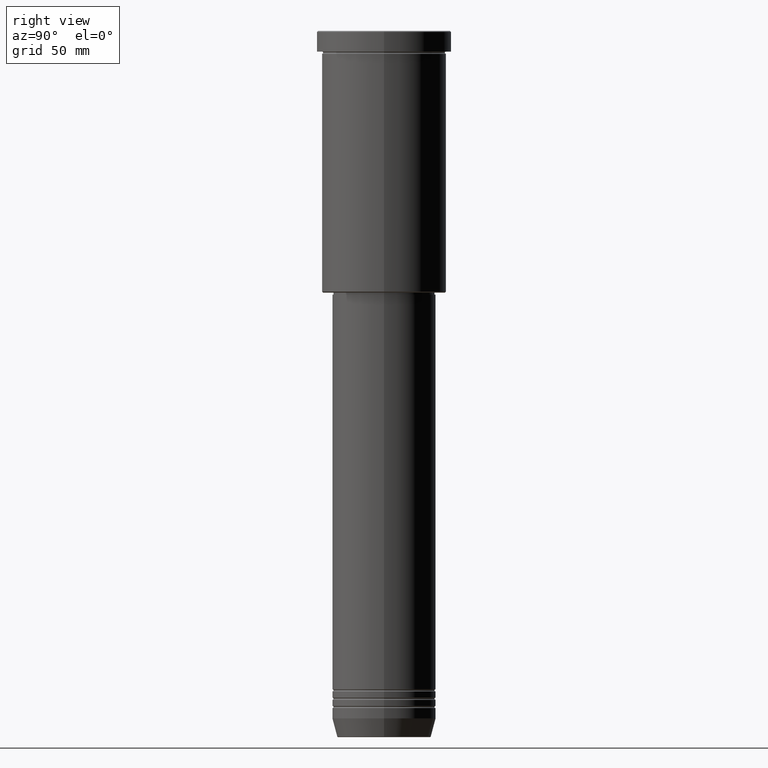
[diagram: clean part render]
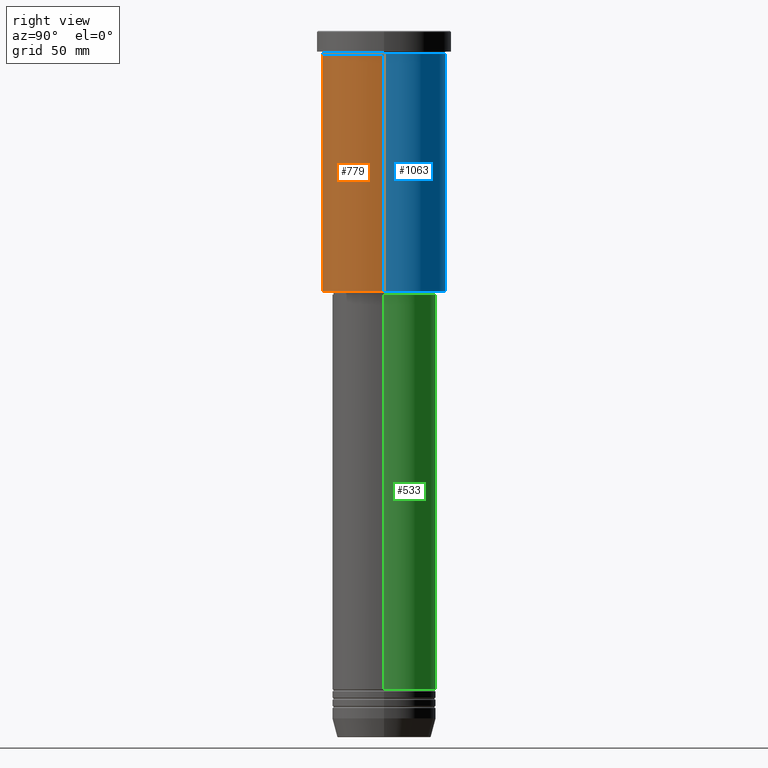
[diagram: same view with three faces highlighted in distinct colors, each labeled with its STEP entity id]
A machine part, right view with three faces highlighted in distinct colors.
Their STEP definitions:

[orange] entity #779 — the highlighted cylindrical surface (partial cylindrical patch) has radius 30 mm, axis along (-0, -0, 1).
#9 = EDGE_LOOP ( 'NONE', ( #902, #481, #1025, #1127 ) ) ;
#24 = DIRECTION ( 'NONE',  ( 1.000000000000000000, 0.000000000000000000, 0.000000000000000000 ) ) ;
#72 = CARTESIAN_POINT ( 'NONE',  ( 30.00000000000000000, 0.000000000000000000, 0.000000000000000000 ) ) ;
#108 = DIRECTION ( 'NONE',  ( -0.000000000000000000, -0.000000000000000000, 1.000000000000000000 ) ) ;
#169 = DIRECTION ( 'NONE',  ( -0.000000000000000000, -0.000000000000000000, 1.000000000000000000 ) ) ;
#175 = DIRECTION ( 'NONE',  ( 1.000000000000000000, 0.000000000000000000, 0.000000000000000000 ) ) ;
#197 = CYLINDRICAL_SURFACE ( 'NONE', #637, 30.00000000000000000 ) ;
#277 = CIRCLE ( 'NONE', #388, 30.00000000000000000 ) ;
#281 = FACE_OUTER_BOUND ( 'NONE', #9, .T. ) ;
#287 = CARTESIAN_POINT ( 'NONE',  ( -30.00000000000000000, 3.673940397442059178E-15, 0.000000000000000000 ) ) ;
#296 = VERTEX_POINT ( 'NONE', #1023 ) ;
#302 = DIRECTION ( 'NONE',  ( -1.000000000000000000, 0.000000000000000000, 0.000000000000000000 ) ) ;
#336 = CIRCLE ( 'NONE', #505, 30.00000000000000000 ) ;
#384 = EDGE_CURVE ( 'NONE', #402, #1061, #811, .T. ) ;
#388 = AXIS2_PLACEMENT_3D ( 'NONE', #1123, #827, #302 ) ;
#402 = VERTEX_POINT ( 'NONE', #915 ) ;
#425 = DIRECTION ( 'NONE',  ( -0.000000000000000000, -0.000000000000000000, 1.000000000000000000 ) ) ;
#429 = CARTESIAN_POINT ( 'NONE',  ( 0.000000000000000000, 0.000000000000000000, -10.99999999999999289 ) ) ;
#443 = CARTESIAN_POINT ( 'NONE',  ( 30.00000000000000000, 0.000000000000000000, -125.5000000000000284 ) ) ;
#481 = ORIENTED_EDGE ( 'NONE', *, *, #490, .T. ) ;
#490 = EDGE_CURVE ( 'NONE', #402, #1002, #277, .T. ) ;
#505 = AXIS2_PLACEMENT_3D ( 'NONE', #429, #169, #175 ) ;
#509 = VECTOR ( 'NONE', #425, 1000.000000000000000 ) ;
#517 = LINE ( 'NONE', #72, #509 ) ;
#637 = AXIS2_PLACEMENT_3D ( 'NONE', #917, #108, #24 ) ;
#749 = EDGE_CURVE ( 'NONE', #1002, #296, #517, .T. ) ;
#779 = ADVANCED_FACE ( 'NONE', ( #281 ), #197, .T. ) ;
#790 = CARTESIAN_POINT ( 'NONE',  ( -30.00000000000000000, 3.673940397442059178E-15, -10.99999999999999289 ) ) ;
#811 = LINE ( 'NONE', #287, #1142 ) ;
#827 = DIRECTION ( 'NONE',  ( -0.000000000000000000, -0.000000000000000000, 1.000000000000000000 ) ) ;
#902 = ORIENTED_EDGE ( 'NONE', *, *, #384, .F. ) ;
#915 = CARTESIAN_POINT ( 'NONE',  ( -30.00000000000000000, 3.673940397442059178E-15, -125.5000000000000284 ) ) ;
#917 = CARTESIAN_POINT ( 'NONE',  ( 0.000000000000000000, 0.000000000000000000, 0.000000000000000000 ) ) ;
#1000 = EDGE_CURVE ( 'NONE', #1061, #296, #336, .T. ) ;
#1002 = VERTEX_POINT ( 'NONE', #443 ) ;
#1023 = CARTESIAN_POINT ( 'NONE',  ( 30.00000000000000000, 0.000000000000000000, -10.99999999999999289 ) ) ;
#1025 = ORIENTED_EDGE ( 'NONE', *, *, #749, .T. ) ;
#1061 = VERTEX_POINT ( 'NONE', #790 ) ;
#1090 = DIRECTION ( 'NONE',  ( -0.000000000000000000, -0.000000000000000000, 1.000000000000000000 ) ) ;
#1123 = CARTESIAN_POINT ( 'NONE',  ( 0.000000000000000000, 0.000000000000000000, -125.5000000000000284 ) ) ;
#1127 = ORIENTED_EDGE ( 'NONE', *, *, #1000, .F. ) ;
#1142 = VECTOR ( 'NONE', #1090, 1000.000000000000000 ) ;

[blue] entity #1063 — the highlighted cylindrical surface (partial cylindrical patch) has radius 30 mm, axis along (-0, -0, 1).
#72 = CARTESIAN_POINT ( 'NONE',  ( 30.00000000000000000, 0.000000000000000000, 0.000000000000000000 ) ) ;
#105 = DIRECTION ( 'NONE',  ( 1.000000000000000000, 0.000000000000000000, 0.000000000000000000 ) ) ;
#162 = ORIENTED_EDGE ( 'NONE', *, *, #248, .T. ) ;
#167 = EDGE_LOOP ( 'NONE', ( #162, #800, #380, #578 ) ) ;
#238 = CARTESIAN_POINT ( 'NONE',  ( 0.000000000000000000, 0.000000000000000000, -125.5000000000000284 ) ) ;
#248 = EDGE_CURVE ( 'NONE', #1002, #402, #516, .T. ) ;
#287 = CARTESIAN_POINT ( 'NONE',  ( -30.00000000000000000, 3.673940397442059178E-15, 0.000000000000000000 ) ) ;
#296 = VERTEX_POINT ( 'NONE', #1023 ) ;
#339 = DIRECTION ( 'NONE',  ( -0.000000000000000000, -0.000000000000000000, 1.000000000000000000 ) ) ;
#341 = DIRECTION ( 'NONE',  ( -0.000000000000000000, -0.000000000000000000, 1.000000000000000000 ) ) ;
#380 = ORIENTED_EDGE ( 'NONE', *, *, #545, .F. ) ;
#384 = EDGE_CURVE ( 'NONE', #402, #1061, #811, .T. ) ;
#402 = VERTEX_POINT ( 'NONE', #915 ) ;
#409 = AXIS2_PLACEMENT_3D ( 'NONE', #238, #339, #701 ) ;
#425 = DIRECTION ( 'NONE',  ( -0.000000000000000000, -0.000000000000000000, 1.000000000000000000 ) ) ;
#443 = CARTESIAN_POINT ( 'NONE',  ( 30.00000000000000000, 0.000000000000000000, -125.5000000000000284 ) ) ;
#447 = AXIS2_PLACEMENT_3D ( 'NONE', #888, #341, #703 ) ;
#487 = CIRCLE ( 'NONE', #948, 30.00000000000000000 ) ;
#509 = VECTOR ( 'NONE', #425, 1000.000000000000000 ) ;
#516 = CIRCLE ( 'NONE', #409, 30.00000000000000000 ) ;
#517 = LINE ( 'NONE', #72, #509 ) ;
#545 = EDGE_CURVE ( 'NONE', #296, #1061, #487, .T. ) ;
#578 = ORIENTED_EDGE ( 'NONE', *, *, #749, .F. ) ;
#701 = DIRECTION ( 'NONE',  ( -1.000000000000000000, 0.000000000000000000, 0.000000000000000000 ) ) ;
#703 = DIRECTION ( 'NONE',  ( 1.000000000000000000, 0.000000000000000000, 0.000000000000000000 ) ) ;
#749 = EDGE_CURVE ( 'NONE', #1002, #296, #517, .T. ) ;
#786 = CYLINDRICAL_SURFACE ( 'NONE', #447, 30.00000000000000000 ) ;
#790 = CARTESIAN_POINT ( 'NONE',  ( -30.00000000000000000, 3.673940397442059178E-15, -10.99999999999999289 ) ) ;
#800 = ORIENTED_EDGE ( 'NONE', *, *, #384, .T. ) ;
#811 = LINE ( 'NONE', #287, #1142 ) ;
#888 = CARTESIAN_POINT ( 'NONE',  ( 0.000000000000000000, 0.000000000000000000, 0.000000000000000000 ) ) ;
#913 = DIRECTION ( 'NONE',  ( -0.000000000000000000, -0.000000000000000000, 1.000000000000000000 ) ) ;
#915 = CARTESIAN_POINT ( 'NONE',  ( -30.00000000000000000, 3.673940397442059178E-15, -125.5000000000000284 ) ) ;
#948 = AXIS2_PLACEMENT_3D ( 'NONE', #1020, #913, #105 ) ;
#984 = FACE_OUTER_BOUND ( 'NONE', #167, .T. ) ;
#1002 = VERTEX_POINT ( 'NONE', #443 ) ;
#1020 = CARTESIAN_POINT ( 'NONE',  ( 0.000000000000000000, 0.000000000000000000, -10.99999999999999289 ) ) ;
#1023 = CARTESIAN_POINT ( 'NONE',  ( 30.00000000000000000, 0.000000000000000000, -10.99999999999999289 ) ) ;
#1061 = VERTEX_POINT ( 'NONE', #790 ) ;
#1063 = ADVANCED_FACE ( 'NONE', ( #984 ), #786, .T. ) ;
#1090 = DIRECTION ( 'NONE',  ( -0.000000000000000000, -0.000000000000000000, 1.000000000000000000 ) ) ;
#1142 = VECTOR ( 'NONE', #1090, 1000.000000000000000 ) ;

[green] entity #533 — the highlighted cylindrical surface (partial cylindrical patch) has radius 25 mm, axis along (-0, -0, 1).
#10 = CYLINDRICAL_SURFACE ( 'NONE', #134, 25.00000000000000355 ) ;
#11 = CARTESIAN_POINT ( 'NONE',  ( -25.00000000000000355, 3.061616997868383437E-15, 0.000000000000000000 ) ) ;
#45 = EDGE_LOOP ( 'NONE', ( #460, #855, #387, #756 ) ) ;
#55 = VERTEX_POINT ( 'NONE', #390 ) ;
#57 = CARTESIAN_POINT ( 'NONE',  ( 25.00000000000000000, 0.000000000000000000, -317.0000000000000568 ) ) ;
#64 = CIRCLE ( 'NONE', #300, 25.00000000000000711 ) ;
#134 = AXIS2_PLACEMENT_3D ( 'NONE', #821, #647, #925 ) ;
#153 = AXIS2_PLACEMENT_3D ( 'NONE', #417, #687, #968 ) ;
#289 = CARTESIAN_POINT ( 'NONE',  ( -25.00000000000000000, 3.061616997868383437E-15, -317.0000000000000568 ) ) ;
#300 = AXIS2_PLACEMENT_3D ( 'NONE', #519, #908, #742 ) ;
#301 = EDGE_CURVE ( 'NONE', #803, #932, #745, .T. ) ;
#378 = DIRECTION ( 'NONE',  ( -0.000000000000000000, -0.000000000000000000, 1.000000000000000000 ) ) ;
#387 = ORIENTED_EDGE ( 'NONE', *, *, #953, .F. ) ;
#390 = CARTESIAN_POINT ( 'NONE',  ( -25.00000000000001066, 3.061616997868384226E-15, -126.9999999999999147 ) ) ;
#417 = CARTESIAN_POINT ( 'NONE',  ( 0.000000000000000000, 0.000000000000000000, -317.0000000000000568 ) ) ;
#460 = ORIENTED_EDGE ( 'NONE', *, *, #1051, .T. ) ;
#465 = VECTOR ( 'NONE', #378, 1000.000000000000000 ) ;
#519 = CARTESIAN_POINT ( 'NONE',  ( 0.000000000000000000, 0.000000000000000000, -126.9999999999999147 ) ) ;
#533 = ADVANCED_FACE ( 'NONE', ( #1005 ), #10, .T. ) ;
#571 = VERTEX_POINT ( 'NONE', #289 ) ;
#647 = DIRECTION ( 'NONE',  ( -0.000000000000000000, -0.000000000000000000, 1.000000000000000000 ) ) ;
#655 = CIRCLE ( 'NONE', #153, 25.00000000000000000 ) ;
#687 = DIRECTION ( 'NONE',  ( -0.000000000000000000, -0.000000000000000000, 1.000000000000000000 ) ) ;
#725 = DIRECTION ( 'NONE',  ( -0.000000000000000000, -0.000000000000000000, 1.000000000000000000 ) ) ;
#731 = CARTESIAN_POINT ( 'NONE',  ( 25.00000000000000355, 0.000000000000000000, 0.000000000000000000 ) ) ;
#742 = DIRECTION ( 'NONE',  ( 1.000000000000000000, 0.000000000000000000, 0.000000000000000000 ) ) ;
#745 = LINE ( 'NONE', #731, #465 ) ;
#756 = ORIENTED_EDGE ( 'NONE', *, *, #301, .F. ) ;
#803 = VERTEX_POINT ( 'NONE', #57 ) ;
#821 = CARTESIAN_POINT ( 'NONE',  ( 0.000000000000000000, 0.000000000000000000, 0.000000000000000000 ) ) ;
#855 = ORIENTED_EDGE ( 'NONE', *, *, #1170, .T. ) ;
#907 = VECTOR ( 'NONE', #725, 1000.000000000000000 ) ;
#908 = DIRECTION ( 'NONE',  ( -0.000000000000000000, -0.000000000000000000, 1.000000000000000000 ) ) ;
#925 = DIRECTION ( 'NONE',  ( 1.000000000000000000, 0.000000000000000000, 0.000000000000000000 ) ) ;
#932 = VERTEX_POINT ( 'NONE', #982 ) ;
#953 = EDGE_CURVE ( 'NONE', #932, #55, #64, .T. ) ;
#968 = DIRECTION ( 'NONE',  ( 1.000000000000000000, 0.000000000000000000, 0.000000000000000000 ) ) ;
#982 = CARTESIAN_POINT ( 'NONE',  ( 25.00000000000000711, 0.000000000000000000, -126.9999999999999147 ) ) ;
#1005 = FACE_OUTER_BOUND ( 'NONE', #45, .T. ) ;
#1051 = EDGE_CURVE ( 'NONE', #803, #571, #655, .T. ) ;
#1083 = LINE ( 'NONE', #11, #907 ) ;
#1170 = EDGE_CURVE ( 'NONE', #571, #55, #1083, .T. ) ;